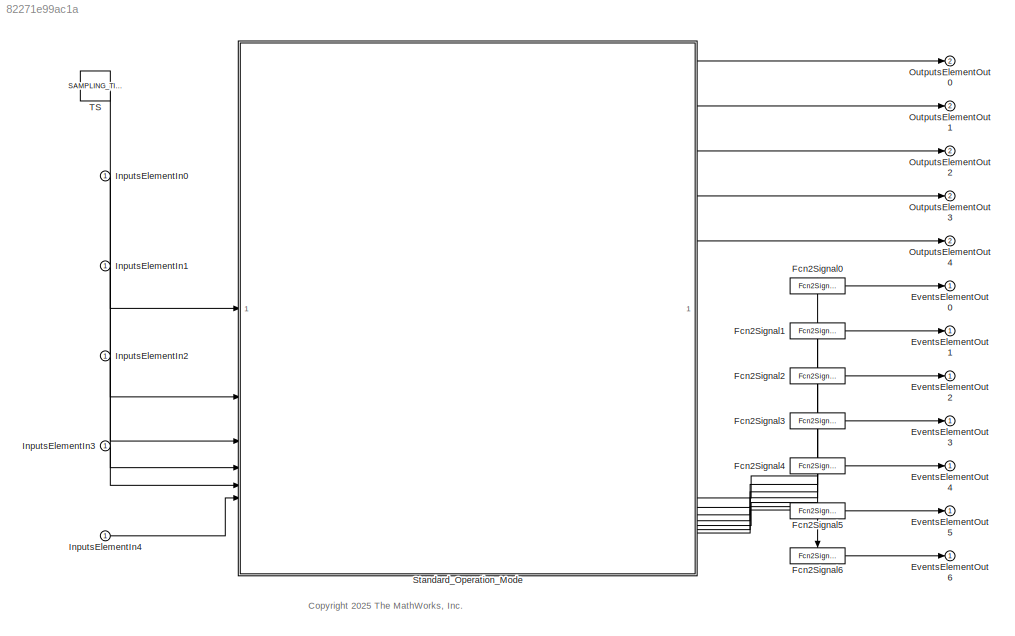
MODEL slx_82271e99ac1a
KIND model
CONFIG AbsTol = auto
CONFIG EnableMultiTasking = off
CONFIG FixedStep = SAMPLING_TIME
CONFIG MaxStep = auto
CONFIG MinStep = auto
CONFIG RelTol = 1e-3
CONFIG SampleTimeConstraint = Unconstrained
CONFIG SolverName = FixedStepAuto
CONFIG StartTime = 0.0
CONFIG StopTime = Inf
BLOCK [Outport] EventsElementOut0
BLOCK [Outport] EventsElementOut1
BLOCK [Outport] EventsElementOut2
BLOCK [Outport] EventsElementOut3
BLOCK [Outport] EventsElementOut4
BLOCK [Outport] EventsElementOut5
BLOCK [Outport] EventsElementOut6
BLOCK [Reference] Fcn2Signal0  REF=Components/Fcn2Signal
  SourceBlock = Components/Fcn2Signal
  SourceType = SubSystem
BLOCK [Reference] Fcn2Signal1  REF=Components/Fcn2Signal
  SourceBlock = Components/Fcn2Signal
  SourceType = SubSystem
BLOCK [Reference] Fcn2Signal2  REF=Components/Fcn2Signal
  SourceBlock = Components/Fcn2Signal
  SourceType = SubSystem
BLOCK [Reference] Fcn2Signal3  REF=Components/Fcn2Signal
  SourceBlock = Components/Fcn2Signal
  SourceType = SubSystem
BLOCK [Reference] Fcn2Signal4  REF=Components/Fcn2Signal
  SourceBlock = Components/Fcn2Signal
  SourceType = SubSystem
BLOCK [Reference] Fcn2Signal5  REF=Components/Fcn2Signal
  SourceBlock = Components/Fcn2Signal
  SourceType = SubSystem
BLOCK [Reference] Fcn2Signal6  REF=Components/Fcn2Signal
  SourceBlock = Components/Fcn2Signal
  SourceType = SubSystem
BLOCK [Inport] InputsElementIn0
BLOCK [Inport] InputsElementIn1
BLOCK [Inport] InputsElementIn2
BLOCK [Inport] InputsElementIn3
BLOCK [Inport] InputsElementIn4
BLOCK [Outport] OutputsElementOut0
  Port = 2
BLOCK [Outport] OutputsElementOut1
  Port = 2
BLOCK [Outport] OutputsElementOut2
  Port = 2
BLOCK [Outport] OutputsElementOut3
  Port = 2
BLOCK [Outport] OutputsElementOut4
  Port = 2
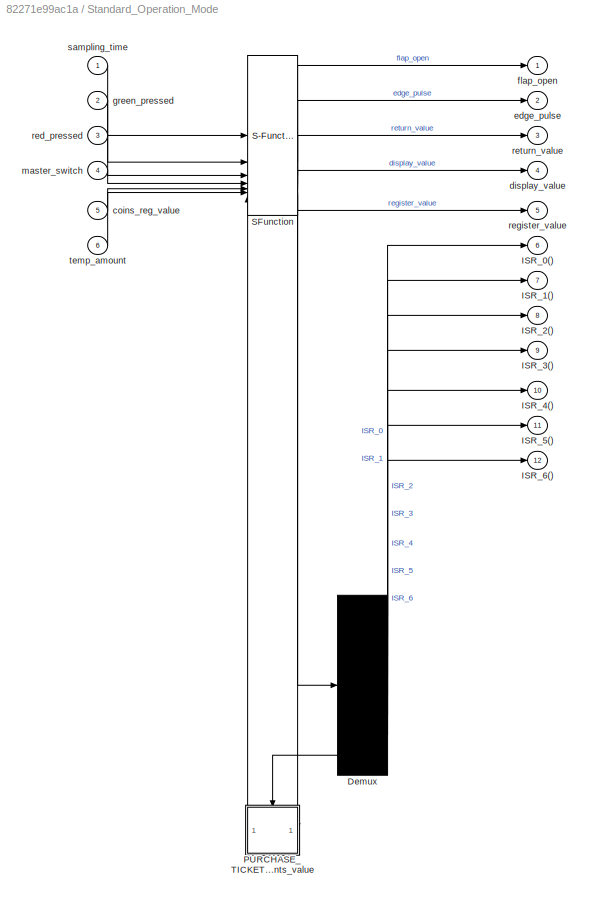
BLOCK [SubSystem] Standard_Operation_Mode
  ErrorFcn = Stateflow.Translate.translate
  PermitHierarchicalResolution = ExplicitOnly
  SFBlockType = Chart
  TreatAsAtomicUnit = on
BLOCK [Demux] Standard_Operation_Mode/ Demux 
  Outputs = 8
BLOCK [S-Function] Standard_Operation_Mode/ SFunction 
  EnableBusSupport = on
  FunctionName = sf_sfun
  PortCounts = [7 7]
  SFcnIsStateOwnerBlock = off
  SFunctionDeploymentMode = off
  Tag = Stateflow S-Function 3
BLOCK [Outport] Standard_Operation_Mode/ISR_0()
  Port = 6
  VectorParamsAs1DForOutWhenUnconnected = off
BLOCK [Outport] Standard_Operation_Mode/ISR_1()
  Port = 7
  VectorParamsAs1DForOutWhenUnconnected = off
BLOCK [Outport] Standard_Operation_Mode/ISR_2()
  Port = 8
  VectorParamsAs1DForOutWhenUnconnected = off
BLOCK [Outport] Standard_Operation_Mode/ISR_3()
  Port = 9
  VectorParamsAs1DForOutWhenUnconnected = off
BLOCK [Outport] Standard_Operation_Mode/ISR_4()
  Port = 10
  VectorParamsAs1DForOutWhenUnconnected = off
BLOCK [Outport] Standard_Operation_Mode/ISR_5()
  Port = 11
  VectorParamsAs1DForOutWhenUnconnected = off
BLOCK [Outport] Standard_Operation_Mode/ISR_6()
  Port = 12
  VectorParamsAs1DForOutWhenUnconnected = off
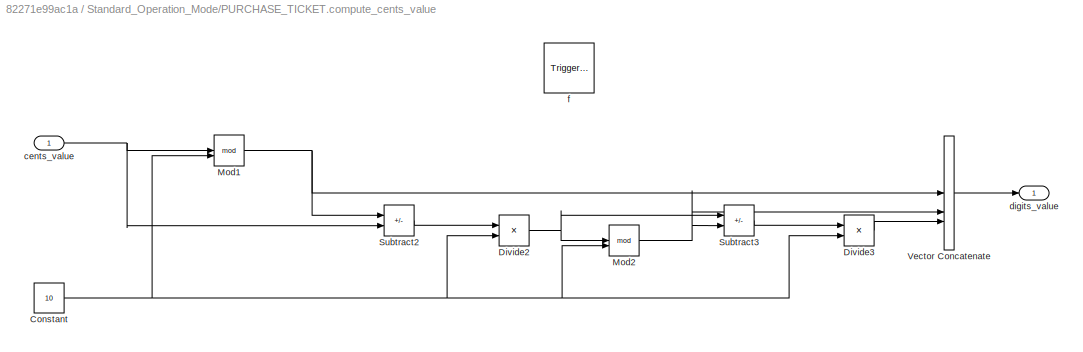
BLOCK [SubSystem] Standard_Operation_Mode/PURCHASE_TICKET.compute_cents_value
  PreDeleteFcn = Stateflow.SLINSF.SimulinkMan.removePreDeleteFcn
  UndoDeleteFcn = Stateflow.SLINSF.SimulinkMan.restorePreDeleteFcn
BLOCK [Constant] Standard_Operation_Mode/PURCHASE_TICKET.compute_cents_value/Constant
  OutDataTypeStr = uint8
  Value = 10
BLOCK [Product] Standard_Operation_Mode/PURCHASE_TICKET.compute_cents_value/Divide2
  Inputs = */
BLOCK [Product] Standard_Operation_Mode/PURCHASE_TICKET.compute_cents_value/Divide3
  Inputs = */
BLOCK [Math] Standard_Operation_Mode/PURCHASE_TICKET.compute_cents_value/Mod1
  Operator = mod
  SignedPower = on
BLOCK [Math] Standard_Operation_Mode/PURCHASE_TICKET.compute_cents_value/Mod2
  Operator = mod
  SignedPower = on
BLOCK [Sum] Standard_Operation_Mode/PURCHASE_TICKET.compute_cents_value/Subtract2
  IconShape = rectangular
  Inputs = -+
BLOCK [Sum] Standard_Operation_Mode/PURCHASE_TICKET.compute_cents_value/Subtract3
  IconShape = rectangular
  Inputs = +-
BLOCK [Concatenate] Standard_Operation_Mode/PURCHASE_TICKET.compute_cents_value/Vector Concatenate
  NumInputs = 3
BLOCK [Inport] Standard_Operation_Mode/PURCHASE_TICKET.compute_cents_value/cents_value
  OutDataTypeStr = uint8
  PortDimensions = [1 1]
  SignalType = real
  VarSizeSig = No
BLOCK [Outport] Standard_Operation_Mode/PURCHASE_TICKET.compute_cents_value/digits_value
  PortDimensions = [1 3]
  VectorParamsAs1DForOutWhenUnconnected = off
BLOCK [TriggerPort] Standard_Operation_Mode/PURCHASE_TICKET.compute_cents_value/f
  CopyFcn = Stateflow.SLINSF.SimulinkMan.removeBlockPreDeleteFcn
  PreDeleteFcn = Stateflow.SLINSF.SimulinkMan.unsafePredeleteFcn
  StatesWhenEnabling = held
  TriggerType = function-call
  VariantControl = (inherit)
BLOCK [Inport] Standard_Operation_Mode/coins_reg_value
  Port = 5
BLOCK [Outport] Standard_Operation_Mode/display_value
  Port = 4
  VectorParamsAs1DForOutWhenUnconnected = off
BLOCK [Outport] Standard_Operation_Mode/edge_pulse
  Port = 2
  VectorParamsAs1DForOutWhenUnconnected = off
BLOCK [Outport] Standard_Operation_Mode/flap_open
  VectorParamsAs1DForOutWhenUnconnected = off
BLOCK [Inport] Standard_Operation_Mode/green_pressed
  Port = 2
BLOCK [Inport] Standard_Operation_Mode/master_switch
  Port = 4
BLOCK [Inport] Standard_Operation_Mode/red_pressed
  Port = 3
BLOCK [Outport] Standard_Operation_Mode/register_value
  Port = 5
  VectorParamsAs1DForOutWhenUnconnected = off
BLOCK [Outport] Standard_Operation_Mode/return_value
  Port = 3
  VectorParamsAs1DForOutWhenUnconnected = off
BLOCK [Inport] Standard_Operation_Mode/sampling_time
BLOCK [Inport] Standard_Operation_Mode/temp_amount
  Port = 6
BLOCK [Constant] TS
  SampleTime = SAMPLING_TIME
  Value = SAMPLING_TIME
ANNOTATION (root): <copyright redacted>
LINE Fcn2Signal0:1 -> EventsElementOut0:1
LINE Fcn2Signal1:1 -> EventsElementOut1:1
LINE Fcn2Signal2:1 -> EventsElementOut2:1
LINE Fcn2Signal3:1 -> EventsElementOut3:1
LINE Fcn2Signal4:1 -> EventsElementOut4:1
LINE Fcn2Signal5:1 -> EventsElementOut5:1
LINE Fcn2Signal6:1 -> EventsElementOut6:1
LINE InputsElementIn0:1 -> Standard_Operation_Mode:2
LINE InputsElementIn1:1 -> Standard_Operation_Mode:3
LINE InputsElementIn2:1 -> Standard_Operation_Mode:4
LINE InputsElementIn3:1 -> Standard_Operation_Mode:5
LINE InputsElementIn4:1 -> Standard_Operation_Mode:6
LINE Standard_Operation_Mode:1 -> OutputsElementOut0:1
LINE Standard_Operation_Mode:10 -> Fcn2Signal4:trigger
LINE Standard_Operation_Mode:11 -> Fcn2Signal5:trigger
LINE Standard_Operation_Mode:12 -> Fcn2Signal6:trigger
LINE Standard_Operation_Mode:2 -> OutputsElementOut1:1
LINE Standard_Operation_Mode:3 -> OutputsElementOut2:1
LINE Standard_Operation_Mode:4 -> OutputsElementOut3:1
LINE Standard_Operation_Mode:5 -> OutputsElementOut4:1
LINE Standard_Operation_Mode:6 -> Fcn2Signal0:trigger
LINE Standard_Operation_Mode:7 -> Fcn2Signal1:trigger
LINE Standard_Operation_Mode:8 -> Fcn2Signal2:trigger
LINE Standard_Operation_Mode:9 -> Fcn2Signal3:trigger
LINE TS:1 -> Standard_Operation_Mode:1
CHART Standard_Operation_Mode states=21 transitions=30
  STATE_LABEL "INITIALIZATION\nduring: % Reset of the parking meter status\n display_value = uint8(double(SEGMENTS_DIGIT_M)*ones(1,NB_DISP));\n return_value = uint8(0);\n flap_open = logical(0);\nexit:\n send(ISR_1); % Initial state of the 7 segments displays\n send(ISR_2); % Close the coin's flap\n"
  STATE_LABEL 'PURCHASE_CHECK\nentry: % Waiting on a ticket purchase request\n send(ISR_3); % Ignit the checking of the money that can be given back\n send(ISR_5); % Ignit the checking of the green button and master switch\nduring:\n send(ISR_5); % Check the status of the green button and master switch\nexit:\n send(ISR_3); % Leds: check if the parking meter can give money back\n'
  STATE_LABEL 'STOP_EXECUTION\nentry: % Stop the model execution\n send(ISR_0); % Trigger the terminate function to stop the execution'
  STATE_LABEL "CHECK_COINS\nentry: % Update of the button value state once it has been pressed\n send(ISR_5); % Status of the green button must be equal to zero\nduring:\n flap_open = logical(1);\n display_value = [SEGMENTS_DIGIT_0, SEGMENTS_DIGIT_2, ...\n   SEGMENTS_DIGIT_1+SEGMENTS_DIGIT_P];\nexit:\n send(ISR_2); % Open the coin's flap\n send(ISR_1); % Display the cost of a parking ticket"
  STATE_LABEL 'PURCHASE_TICKET\n% Waiting for the full paiment or the cancellation of the ticket'
  STATE_LABEL 'digits_value = compute_cents_value(cents_value)'
  STATE_LABEL 'INITIALIZATION\nduring: % Reset local variables and pause the process\n inserted_amount = uint16(0);\n amount_to_return = uint8(0);\n register_value = uint8(0);\n remaining_amount = uint8(zeros(1,3));'
  STATE_LABEL 'new_reg_value = display_digits(digit_value)'
  STATE_LABEL 'SCRIPT:\nfunction new_reg_value = display_digits(digit_value)\n%%%%%%%%%%%%%%%%%%%%%%%%%%%%%%%%%%%%%%%%%%%%%%%%%%%%%%%%%%%%%%%%%%%%%%%%%%%%%%%%\n% Function display_digits()\n% Goal  : Update the 7 segments displays with new digits values\n% IN    : - digit_value: base 10 value to display on the 7 segments displays\n% IN/OUT: -\n% OUT   : - new_reg_value: array of integers representing the updated amount ...<+1199ch>'
  STATE_LABEL '[amount_back, new_reg_value] = return_coins_value(amount)'
  STATE_LABEL "SCRIPT:\nfunction [amount_back, new_reg_value] = return_coins_value(amount)\n%%%%%%%%%%%%%%%%%%%%%%%%%%%%%%%%%%%%%%%%%%%%%%%%%%%%%%%%%%%%%%%%%%%%%%%%%%%%%%%%\n% Function return_coins_value()\n% Goal  : \n% IN    : - amount: amount corresponding to the coin value to return\n% IN/OUT: -\n% OUT   : - new_reg_value: value representing the coin's value to return\n%%%%%%%%%%%%%%%%%%%%%%%%%%%%%%%%%%%%%%%%%%%%%%%...<+652ch>"
  STATE_LABEL 'CANCEL_CHECK\nentry: % Check if the purchase is being cancelled\n send(ISR_5); % Check status of the red button'
  STATE_LABEL "CANCEL_PURCHASE\nentry: % Ticket's purchase process cancelled\n amount_to_return = uint8(inserted_amount);\n send(ISR_4);"
  STATE_LABEL 'COIN_CHECK\nentry: % Update the amount to pay if a coin has been inserted\n send(ISR_6); % Check current inserted coin\nexit:\n inserted_amount = inserted_amount + uint16(temp_amount);'
  STATE_LABEL 'COINS_RISING_EDGE\nentry: % Update the amount to pay if a coin has been inserted\n [amount_to_return, return_value] = ...\n   return_coins_value(int32(amount_to_return));\nexit: % Generate peripherals pulse\n % Rising Edge of the pulse for the coins to give back\n edge_pulse = logical(1);\n'
  STATE_LABEL 'UPDATE_AMOUNT\nduring: % Update the amount to pay if a coin has been inserted\n register_value = coins_reg_value;\n remaining_amount = ...\n   compute_cents_value(uint8(TICKET_FEE-inserted_amount));\n display_value = display_digits(remaining_amount);\n display_value(end) = display_value(end)+SEGMENTS_DIGIT_P;\nexit:\n send(ISR_1); % Update the remaining cents amount to pay\n'
  STATE_LABEL 'COINS_FALLING_EDGE\nexit: % Generate peripherals pulse\n % Falling Edge of the pulse for the coins to give back\n edge_pulse = logical(0);'
  STATE_LABEL 'COINS_REMAINING\nduring: % Remaining coins to give back'
  STATE_LABEL 'TICKET_PAID\nduring: % Printing of the parking ticket\n display_value = [SEGMENTS_DIGIT_0, SEGMENTS_DIGIT_0, ...\n   SEGMENTS_DIGIT_0+SEGMENTS_DIGIT_P];\n send(ISR_1); % Total ticket amount paid'
  STATE_LABEL 'COINS_DONE\nentry: % No more coins to output\n send(ISR_4);'
  STATE_LABEL 'RECEIPT_RISING_EDGE\nexit: % Generate peripherals pulse\n edge_pulse = logical(1); % Rising Edge of the pulse for the receipt\n return_value = INT_MASK_PRINT_TICKET;\n send(ISR_4);'
  STATE_LABEL 'RECEIPT_FALLING_EDGE\nexit: % Generate peripherals pulse\n edge_pulse = logical(0); % Falling Edge of the pulse for the receipt'
  STATE_LABEL "GIVE_BACK_CHANGE\nentry: % Give back coin's change\n amount_to_return = uint8(inserted_amount-TICKET_FEE);"
  STATE_LABEL '[after(REFRESHING_TICK, tick)]'
  STATE_LABEL '[red_pressed == true]'
  STATE_LABEL '[after(REFRESHING_TICK, tick)]'
  STATE_LABEL '[after(REFRESHING_TICK, tick)]'
  STATE_LABEL '[after(REFRESHING_TICK, tick)]'
  STATE_LABEL '[after(REFRESHING_TICK, tick)]'
  STATE_LABEL '[coins_reg_value ~= register_value]'
  STATE_LABEL '[amount_to_return > 0]'
  STATE_LABEL '[after(PULSE_DUR_TICK, tick)]'
  STATE_LABEL '[after(PULSE_DUR_TICK, tick)]'
  STATE_LABEL '[inserted_amount >= TICKET_FEE]'
  STATE_LABEL '[true]'
  STATE_LABEL '[after(REFRESHING_TICK, tick)]'
  STATE_LABEL '[after(PULSE_DUR_TICK, tick)]'
  STATE_LABEL '[after(PULSE_DUR_TICK, tick)]'
  STATE_LABEL 'digits_value = compute_cents_value(cents_value)'
  STATE_LABEL 'INITIALIZATION\nduring: % Reset local variables and pause the process\n inserted_amount = uint16(0);\n amount_to_return = uint8(0);\n register_value = uint8(0);\n remaining_amount = uint8(zeros(1,3));'
CHART  states=0 transitions=0
